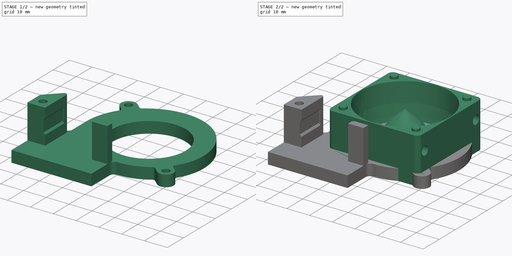
[diagram: build sequence overview — one tinted view per stage of 2, left to right]
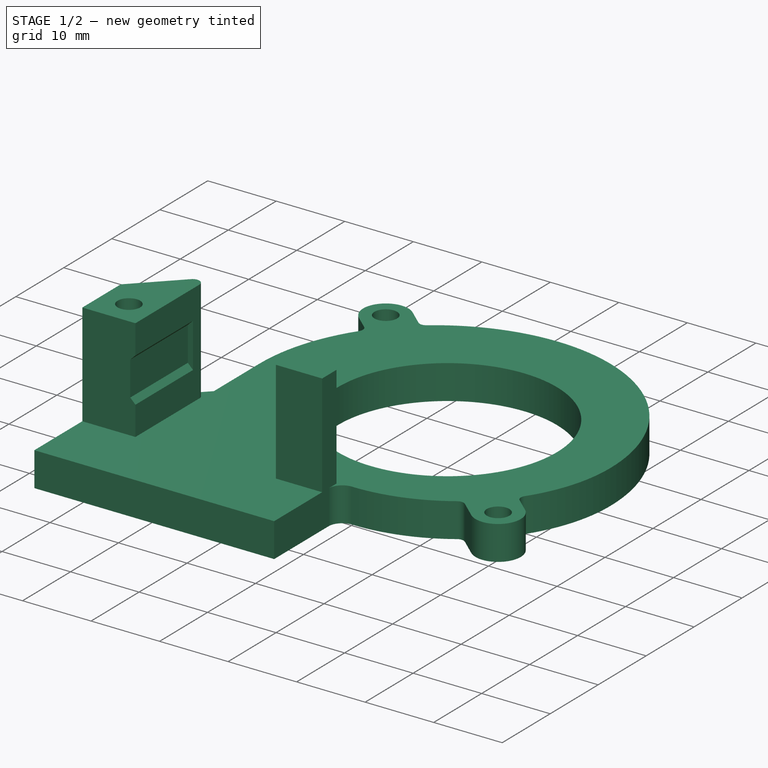
[diagram: stage 1 of 2 — iso view after this stage's code; geometry added in this stage tinted green]
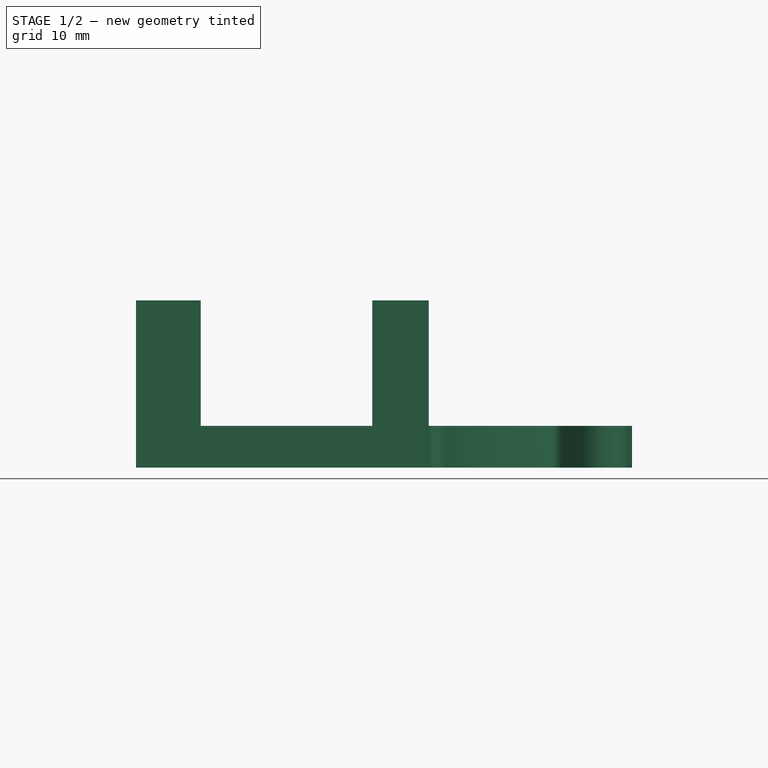
[diagram: stage 1 of 2 — front view after this stage's code; geometry added in this stage tinted green]
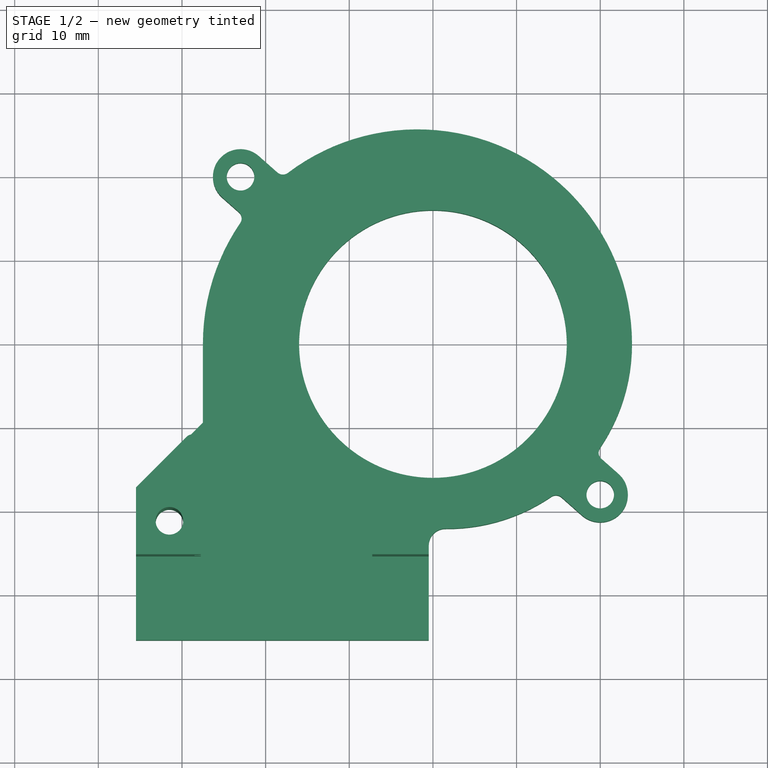
[diagram: stage 1 of 2 — top view after this stage's code; geometry added in this stage tinted green]
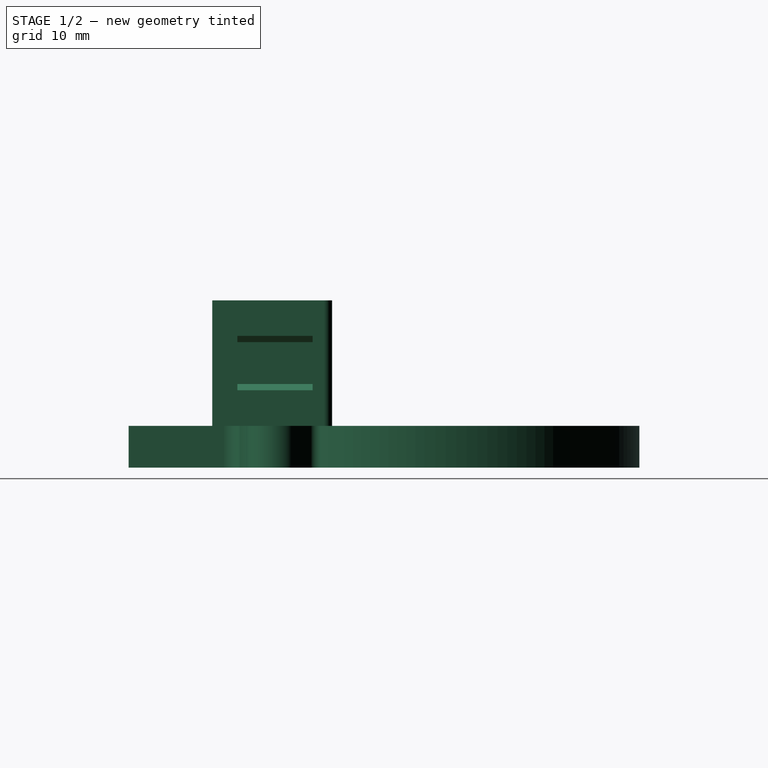
[diagram: stage 1 of 2 — right view after this stage's code; geometry added in this stage tinted green]
FCSTD DOCUMENT  (FreeCAD 0.21R33675 (Git))
Label: sever-compressor
License: All rights reserved
LicenseURL: http://en.wikipedia.org/wiki/All_rights_reserved
objects: Part::Feature×9, App::Part×2, PartDesign::FeatureBase×2, PartDesign::Pad×2, PartDesign::Body×2, Sketcher::SketchObject×1
note: 18 computed .brp shape members not serialized (recipe doc carries the construction recipe); baked Part::Feature solids carry a one-line shape summary decoded from their .brp

FEATURE [PartDesign::FeatureBase] BaseFeature001
  BaseFeature = -> Fillet005
FEATURE [PartDesign::Body] Body  label="top-body"
  BaseFeature = -> Cut004003006006008010
  Group = -> [BaseFeature,Pad]
  Origin = -> Origin
  Placement = pos=(0,0,20) rot=(0,0,1;0rad)
  Tip = -> Pad
FEATURE [Sketcher::SketchObject] Sketch
  ExternalGeometry = -> [BaseFeature001]
  FullyConstrained = true
  MapMode = 5
  Placement = pos=(-3e-16,-25.4,8e-16) rot=(1,0,0;1.5708rad)
  Support = -> [BaseFeature001]
  sketch-geometry (4):
    g0: LineSegment StartX=-35.5 StartY=5 StartZ=0 EndX=-0.5 EndY=5 EndZ=0
    g1: LineSegment StartX=-0.5 StartY=5 StartZ=0 EndX=-0.5 EndY=0 EndZ=0
    g2: LineSegment StartX=-0.5 StartY=0 StartZ=0 EndX=-35.5 EndY=0 EndZ=0
    g3: LineSegment StartX=-35.5 StartY=0 StartZ=0 EndX=-35.5 EndY=5 EndZ=0
  constraints (10):
    c: PointOnObject(g0,g-4)
    c: PointOnObject(g0,g-5)
    c: Horizontal(g0)
    c: Coincident(g0,g1)
    c: Coincident(g1,g-5)
    c: Coincident(g1,g2)
    c: Coincident(g2,g-4)
    c: Coincident(g2,g3)
    c: Coincident(g3,g0)
    c: Horizontal(g-3,g0)
FEATURE [PartDesign::Pad] Pad001
  BaseFeature = -> BaseFeature001
  Direction = (0,-1,2e-16)
  Length = 10
  Length2 = 10
  Profile = -> Sketch
  ReferenceAxis = -> Sketch [N_Axis]
  Type = 0
FEATURE [PartDesign::Body] Body001  label="bottom-body"
  BaseFeature = -> Fillet005
  Group = -> [BaseFeature001,Sketch,Pad001]
  Origin = -> Origin004
  Tip = -> Pad001
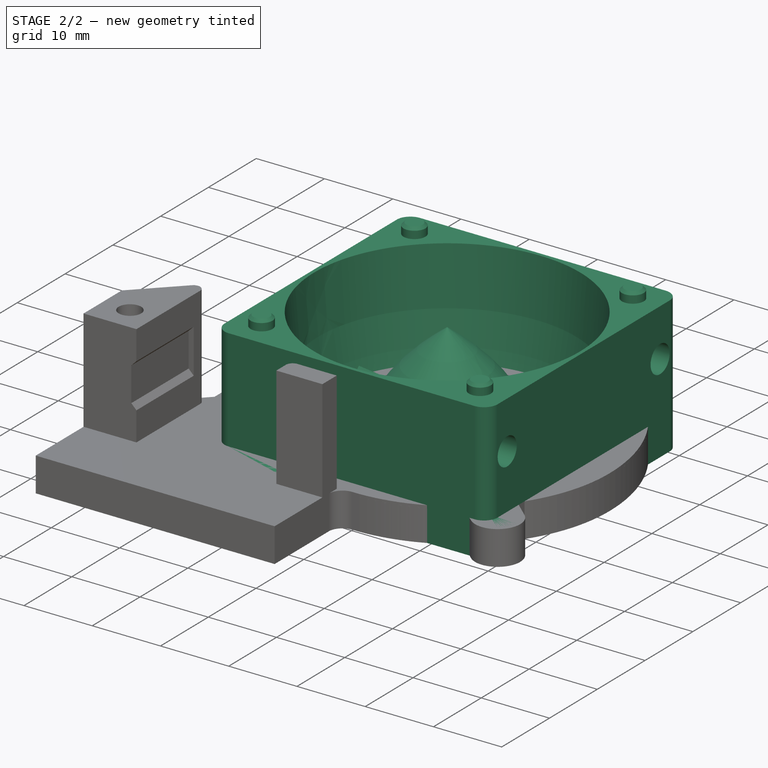
[diagram: stage 2 of 2 — iso view after this stage's code; geometry added in this stage tinted green]
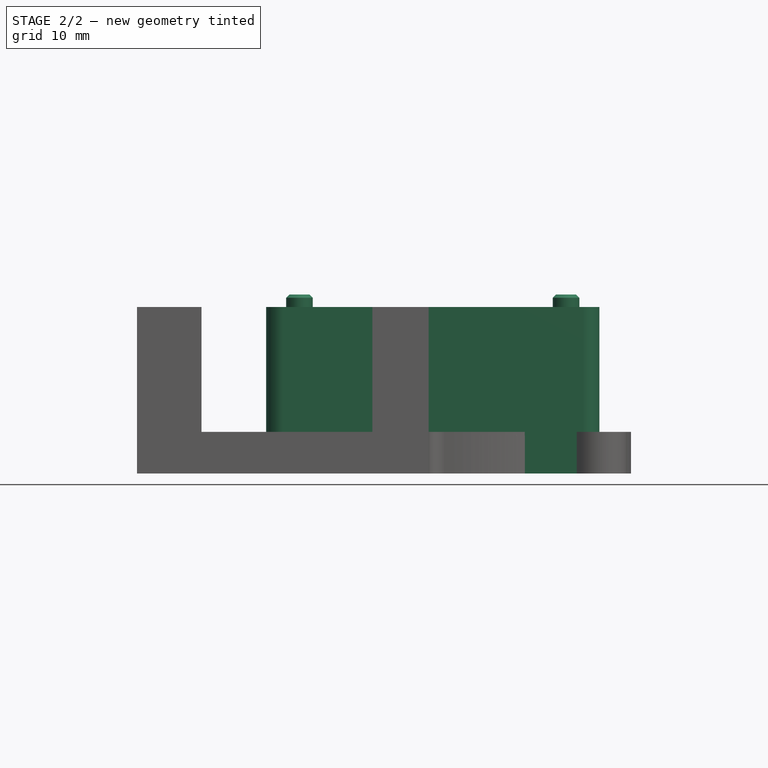
[diagram: stage 2 of 2 — front view after this stage's code; geometry added in this stage tinted green]
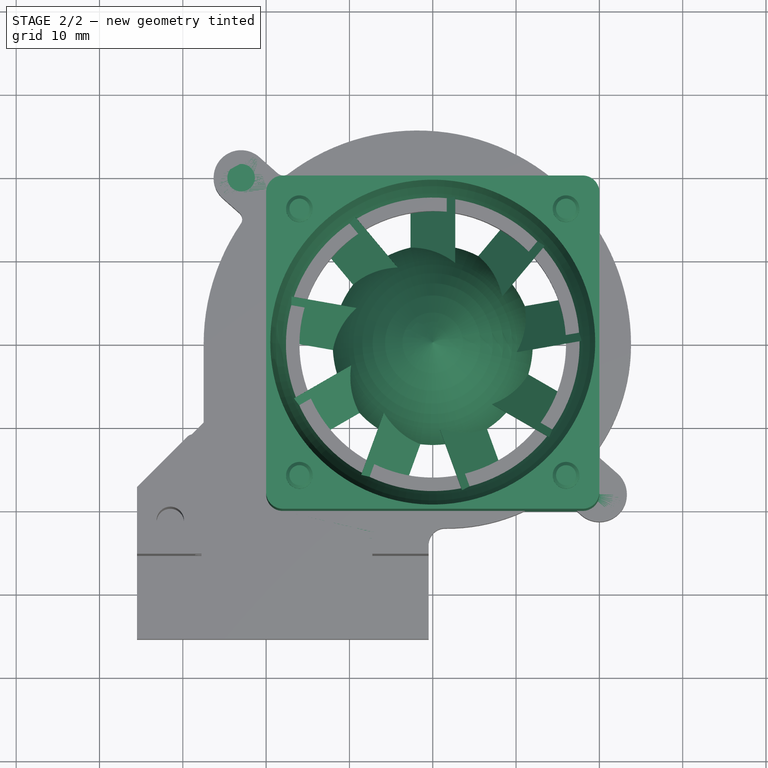
[diagram: stage 2 of 2 — top view after this stage's code; geometry added in this stage tinted green]
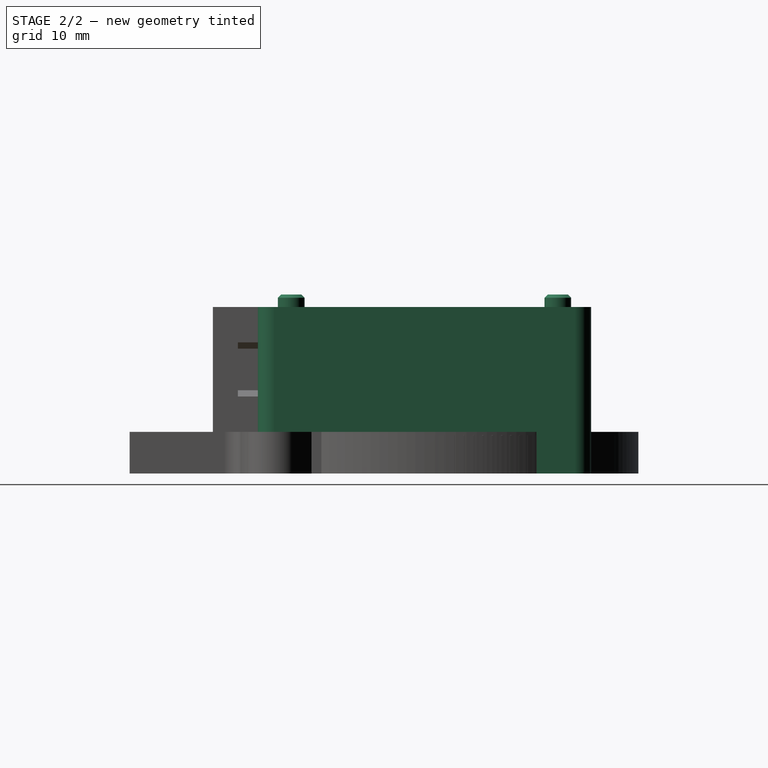
[diagram: stage 2 of 2 — right view after this stage's code; geometry added in this stage tinted green]
FEATURE [Part::Feature] Chamfer009002001001  label="fan-clamp"
  Placement = pos=(0,-6e-15,50) rot=(0.707107,0.707107,0;3.14159rad)
  shape: bbox 13 x 40 x 21 mm, 45 faces (baked)
FEATURE [Part::Feature] Chamfer009003007002  label="top-clamp001"
  Placement = pos=(0,-3e-15,75) rot=(0.707107,0.707107,0;3.14159rad)
  shape: bbox 13 x 40 x 17 mm, 37 faces (baked)
FEATURE [Part::Feature] Pocket001  label="delta-4056-GFM0412SS"
  Placement = pos=(-4e-15,0,96) rot=(0,1,0;3.14159rad)
  shape: bbox 40 x 40 x 56 mm, 119 faces (baked)
FEATURE [Part::Feature] Part__Feature  label="turbine"
  Placement = pos=(0,3.2,0) rot=(0,1,0;0.138121rad)
  shape: bbox 38.92 x 10.5 x 38.96 mm, 229 faces (baked)
FEATURE [Part::Feature] Part__Feature001  label="top"
  Placement = pos=(-4e-15,15,1e-15) rot=(0,0,1;0rad)
  shape: bbox 51.3 x 8 x 51.07 mm, 45 faces (baked)
FEATURE [Part::Feature] Part__Feature002  label="bottom"
  shape: bbox 52.92 x 8.501 x 51.38 mm, 117 faces (baked)
FEATURE [Part::Feature] Part__Feature003  label="bottom001"
  shape: bbox 4.5 x 0.5 x 5.2 mm, 6 faces (baked)
FEATURE [App::Part] bottom  label="bottom002"
  Group = -> [Part__Feature002,Part__Feature003]
  Origin = -> Origin002
FEATURE [App::Part] Radial_Cooling_Fan_5015_DC12V  label="5015-blower"
  Group = -> [Part__Feature,Part__Feature001,bottom]
  Origin = -> Origin003
  Placement = pos=(0,1.1e-15,5) rot=(1,0,0;1.5708rad)
FEATURE [Part::Feature] Cut004003006006008010  label="top-base"
  Placement = pos=(0,0,20) rot=(0,0,1;0rad)
  shape: bbox 59.3 x 51.07 x 21.5 mm, 335 faces (baked)
FEATURE [Part::Feature] Fillet005  label="bottom-base"
  shape: bbox 59.3 x 51.07 x 20 mm, 37 faces (baked)
FEATURE [PartDesign::FeatureBase] BaseFeature
  BaseFeature = -> Cut004003006006008010
FEATURE [PartDesign::Pad] Pad
  BaseFeature = -> BaseFeature
  Direction = (1e-16,-1,0)
  Length = 10
  Length2 = 10
  Profile = -> BaseFeature [Face300]
  Type = 0
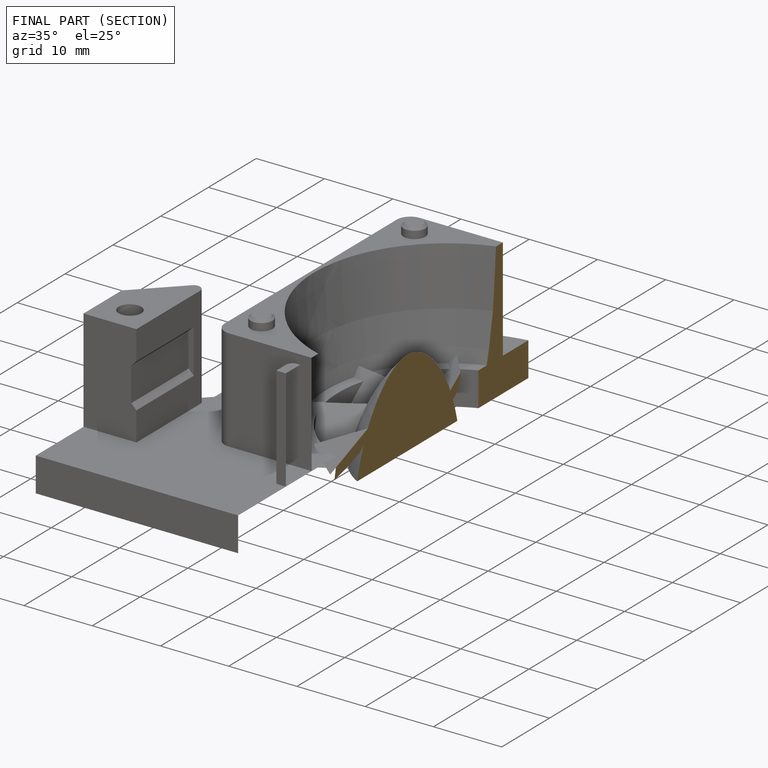
[diagram: finished part — half-section view (interior)]
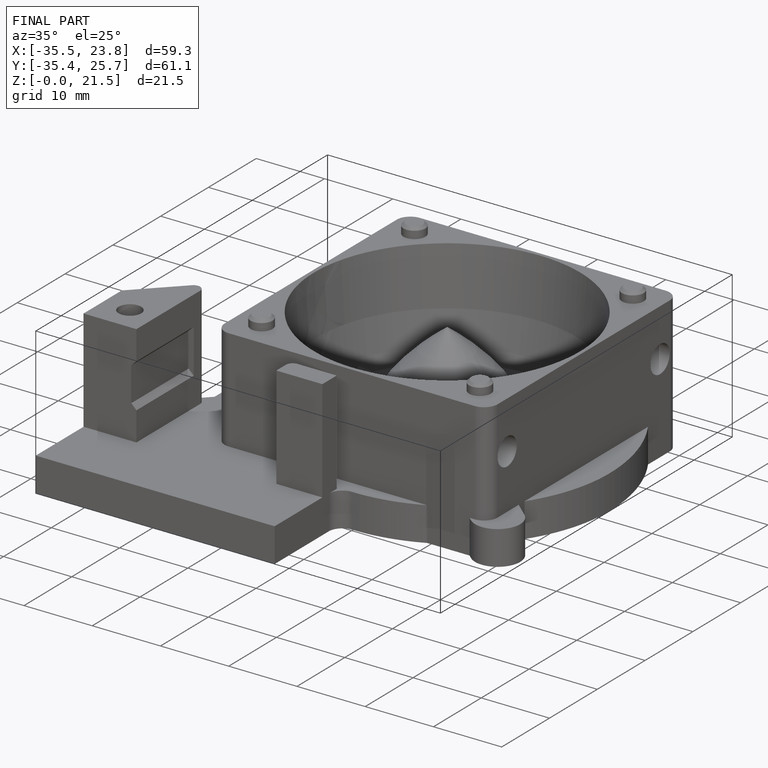
[diagram: finished part — iso view with bounding-box wireframe]
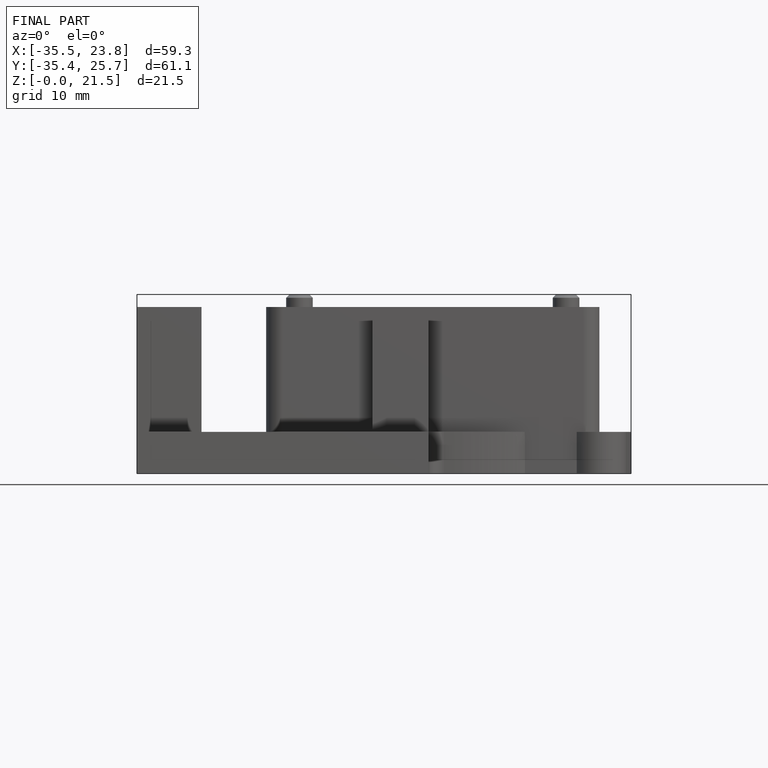
[diagram: finished part — front view with bounding-box wireframe]
